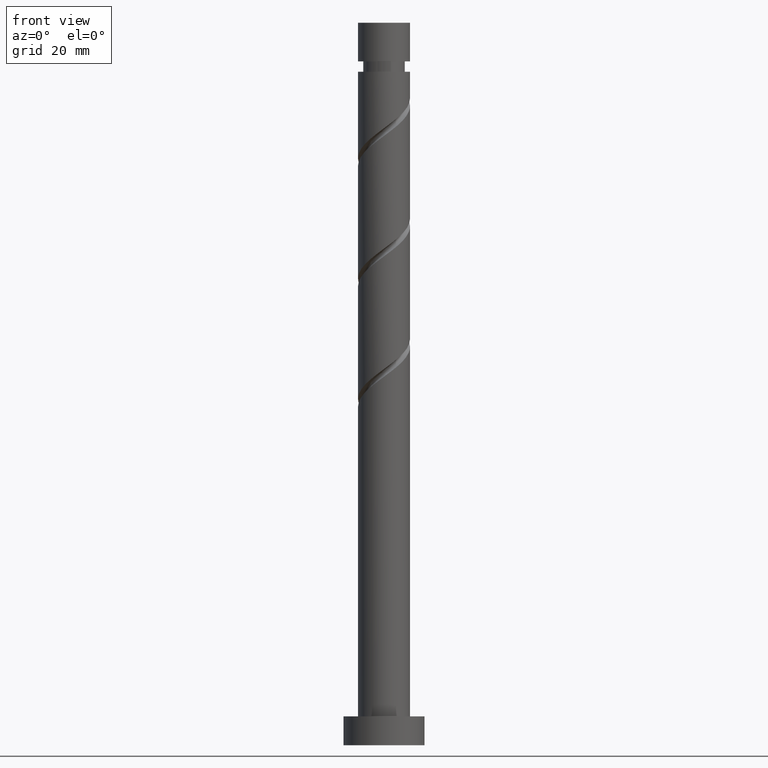
[diagram: clean part render]
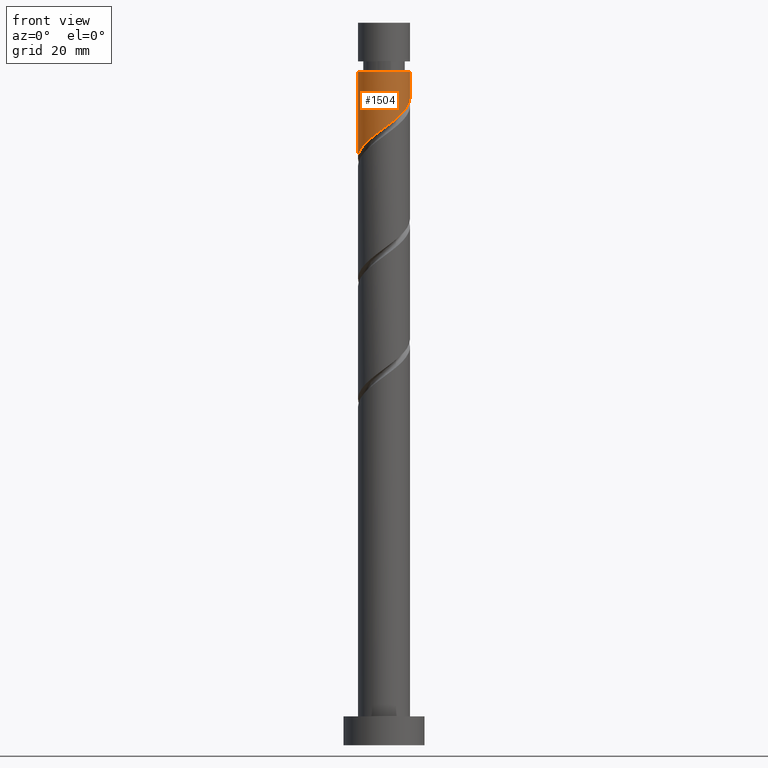
[diagram: same view with one face highlighted and labeled with its STEP entity id]
A machine part, front view. The second image highlights one B-rep face of the part: STEP entity #1504.
In plain terms, the highlighted cylindrical surface (edge-blend (fillet) strip) has radius 4.5 mm, axis along (-0, -0, -1).
Its self-contained STEP definition (entity closure, byte-faithful):
#14 = DIRECTION ( 'NONE',  ( -0.000000000000000000, -0.000000000000000000, -1.000000000000000000 ) ) ;
#28 = CARTESIAN_POINT ( 'NONE',  ( -4.500000000000000000, 0.000000000000000000, 125.0000000000000000 ) ) ;
#54 = CARTESIAN_POINT ( 'NONE',  ( 1.219222487706071112, -4.389929447262718831, 107.6608884463001345 ) ) ;
#107 = FACE_OUTER_BOUND ( 'NONE', #820, .T. ) ;
#177 = VERTEX_POINT ( 'NONE', #388 ) ;
#212 = EDGE_CURVE ( 'NONE', #177, #1145, #1132, .T. ) ;
#216 = CARTESIAN_POINT ( 'NONE',  ( 0.000000000000000000, 0.000000000000000000, 125.0000000000000000 ) ) ;
#236 = VERTEX_POINT ( 'NONE', #677 ) ;
#296 = CARTESIAN_POINT ( 'NONE',  ( 2.516112295057647774, -3.798310538269914716, 108.7025551129667775 ) ) ;
#306 = CARTESIAN_POINT ( 'NONE',  ( 4.500000000000000000, 5.510910596163088569E-16, 125.0000000000000000 ) ) ;
#311 = CARTESIAN_POINT ( 'NONE',  ( -3.798310538269913383, -2.516112295057647774, 103.4942217796334916 ) ) ;
#317 = CARTESIAN_POINT ( 'NONE',  ( -3.316598533837753049, -3.041409897620717562, 104.0150551129668202 ) ) ;
#322 = CARTESIAN_POINT ( 'NONE',  ( 4.410000000000001030, -0.8954886933959582684, 111.3067217796335058 ) ) ;
#386 = LINE ( 'NONE', #306, #1272 ) ;
#388 = CARTESIAN_POINT ( 'NONE',  ( -4.499999999999999112, 0.000000000000000000, 116.5150551129668344 ) ) ;
#391 = EDGE_CURVE ( 'NONE', #793, #1145, #1441, .T. ) ;
#421 = CARTESIAN_POINT ( 'NONE',  ( -2.214425302316376687, -3.917438012331659447, 105.0567217796335342 ) ) ;
#437 = CARTESIAN_POINT ( 'NONE',  ( -4.470880461391593563, -0.5111045880706595046, 101.9317217796335342 ) ) ;
#459 = EDGE_CURVE ( 'NONE', #236, #177, #482, .T. ) ;
#482 = CIRCLE ( 'NONE', #1565, 4.499999999999999112 ) ;
#550 = CARTESIAN_POINT ( 'NONE',  ( -0.1970133115647529909, -4.551831475520468295, 106.6192217796334489 ) ) ;
#566 = CARTESIAN_POINT ( 'NONE',  ( 4.499999999999999112, 3.298482612305286873E-15, 111.9715242211037491 ) ) ;
#590 = VECTOR ( 'NONE', #879, 1000.000000000000000 ) ;
#600 = ORIENTED_EDGE ( 'NONE', *, *, #212, .T. ) ;
#611 = DIRECTION ( 'NONE',  ( -1.000000000000000000, 0.000000000000000000, 0.000000000000000000 ) ) ;
#677 = CARTESIAN_POINT ( 'NONE',  ( 4.499999999999999112, 5.510910596163088569E-16, 116.5150551129668344 ) ) ;
#690 = CARTESIAN_POINT ( 'NONE',  ( 4.500000000000000000, -0.4522670168666469426, 111.6372196456959216 ) ) ;
#697 = CARTESIAN_POINT ( 'NONE',  ( 4.268168524479527548, -1.593964075227163102, 110.7858884463001345 ) ) ;
#713 = DIRECTION ( 'NONE',  ( -0.000000000000000000, -0.000000000000000000, -1.000000000000000000 ) ) ;
#723 = DIRECTION ( 'NONE',  ( -0.000000000000000000, -0.000000000000000000, -1.000000000000000000 ) ) ;
#737 = CARTESIAN_POINT ( 'NONE',  ( -4.499999999999999112, 2.368910239746524029E-15, 101.5548575544371062 ) ) ;
#793 = VERTEX_POINT ( 'NONE', #1369 ) ;
#820 = EDGE_LOOP ( 'NONE', ( #1019, #1176, #600, #1017 ) ) ;
#879 = DIRECTION ( 'NONE',  ( -0.000000000000000000, -0.000000000000000000, -1.000000000000000000 ) ) ;
#912 = CARTESIAN_POINT ( 'NONE',  ( -2.834886529405589606, -3.566707500183787793, 104.5358884463001345 ) ) ;
#926 = CARTESIAN_POINT ( 'NONE',  ( -1.593964075227162214, -4.268168524479527548, 105.5775551129667917 ) ) ;
#1017 = ORIENTED_EDGE ( 'NONE', *, *, #391, .F. ) ;
#1019 = ORIENTED_EDGE ( 'NONE', *, *, #1172, .F. ) ;
#1032 = CARTESIAN_POINT ( 'NONE',  ( 3.917438012331659447, -2.214425302316376687, 110.2650551129668344 ) ) ;
#1037 = CARTESIAN_POINT ( 'NONE',  ( -4.094119992766318106, -1.867667391381859776, 102.9733884463001630 ) ) ;
#1132 = LINE ( 'NONE', #28, #590 ) ;
#1145 = VERTEX_POINT ( 'NONE', #1285 ) ;
#1148 = CARTESIAN_POINT ( 'NONE',  ( 1.867667391381859776, -4.094119992766318106, 108.1817217796335058 ) ) ;
#1172 = EDGE_CURVE ( 'NONE', #236, #793, #386, .T. ) ;
#1176 = ORIENTED_EDGE ( 'NONE', *, *, #459, .T. ) ;
#1190 = CARTESIAN_POINT ( 'NONE',  ( 0.000000000000000000, 0.000000000000000000, 116.5150551129668344 ) ) ;
#1220 = DIRECTION ( 'NONE',  ( -1.000000000000000000, 0.000000000000000000, 0.000000000000000000 ) ) ;
#1272 = VECTOR ( 'NONE', #14, 1000.000000000000000 ) ;
#1285 = CARTESIAN_POINT ( 'NONE',  ( -4.499999999999999112, 2.368910239746524424E-15, 101.5548575544371062 ) ) ;
#1369 = CARTESIAN_POINT ( 'NONE',  ( 4.499999999999999112, 3.298482612305286873E-15, 111.9715242211037491 ) ) ;
#1381 = CARTESIAN_POINT ( 'NONE',  ( 3.041409897620717562, -3.316598533837753049, 109.2233884463001630 ) ) ;
#1388 = CARTESIAN_POINT ( 'NONE',  ( 0.5111045880706592826, -4.470880461391593563, 107.1400551129668628 ) ) ;
#1398 = CARTESIAN_POINT ( 'NONE',  ( -0.8954886933959579354, -4.410000000000001030, 106.0983884463001630 ) ) ;
#1406 = CARTESIAN_POINT ( 'NONE',  ( -4.499999999999999112, -0.2563818185089499213, 101.7443686436443784 ) ) ;
#1441 =( BOUNDED_CURVE ( )  B_SPLINE_CURVE ( 2, ( #566, #690, #322, #697, #1032, #1516, #1381, #296, #1148, #54, #1388, #550, #1398, #926, #421, #912, #317, #311, #1037, #1523, #437, #1406, #737 ),
 .UNSPECIFIED., .F., .T. ) 
 B_SPLINE_CURVE_WITH_KNOTS ( ( 3, 2, 2, 2, 2, 2, 2, 2, 2, 2, 2, 3 ),
 ( 0.3045322023138551937, 0.3125000000000000000, 0.3250000000000000111, 0.3375000000000000222, 0.3499999999999999778, 0.3624999999999999889, 0.3750000000000000000, 0.3875000000000000111, 0.4000000000000000222, 0.4124999999999999778, 0.4249999999999999889, 0.4295322023138551382 ),
 .UNSPECIFIED. ) 
 CURVE ( )  GEOMETRIC_REPRESENTATION_ITEM ( )  RATIONAL_B_SPLINE_CURVE ( ( 0.9039174447099322940, 0.9019565955404615920, 0.9090909090909098378, 0.8978984914501261239, 0.9090909090909098378, 0.8978984914501261239, 0.9090909090909098378, 0.8978984914501261239, 0.9090909090909098378, 0.8978984914501261239, 0.9090909090909098378, 0.8978984914501261239, 0.9090909090909098378, 0.8978984914501261239, 0.9090909090909098378, 0.8978984914501261239, 0.9090909090909098378, 0.8978984914501261239, 0.9090909090909098378, 0.8978984914501261239, 0.9090909090909098378, 0.9050328050005744807, 0.9039174447099322940 ) ) 
 REPRESENTATION_ITEM ( '' )  );
#1446 = AXIS2_PLACEMENT_3D ( 'NONE', #216, #713, #1220 ) ;
#1504 = ADVANCED_FACE ( 'NONE', ( #107 ), #1563, .T. ) ;
#1516 = CARTESIAN_POINT ( 'NONE',  ( 3.566707500183787793, -2.834886529405589606, 109.7442217796334774 ) ) ;
#1523 = CARTESIAN_POINT ( 'NONE',  ( -4.389929447262719719, -1.219222487706071778, 102.4525551129668202 ) ) ;
#1563 = CYLINDRICAL_SURFACE ( 'NONE', #1446, 4.500000000000000000 ) ;
#1565 = AXIS2_PLACEMENT_3D ( 'NONE', #1190, #723, #611 ) ;